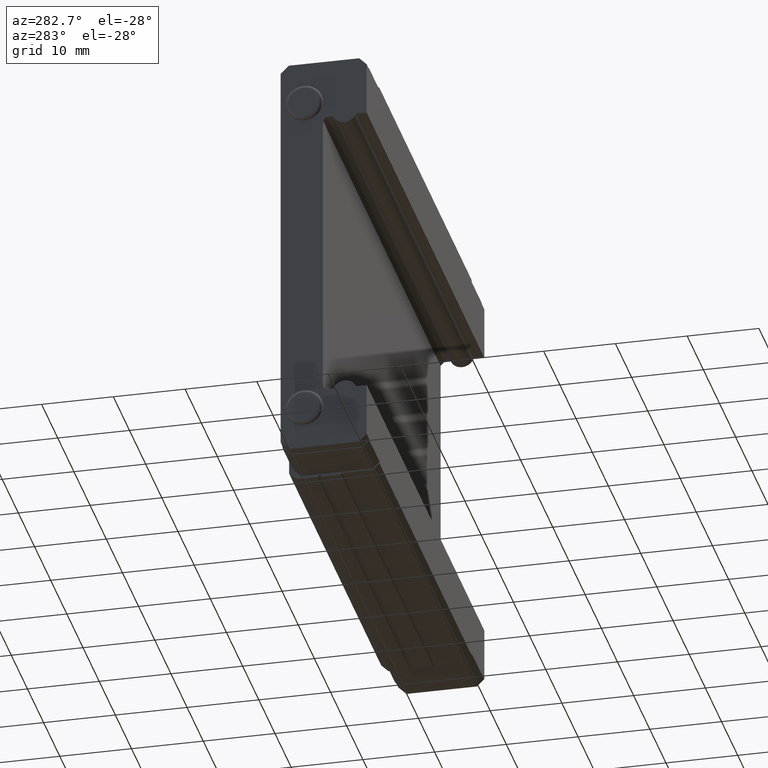
[diagram: clean part render]
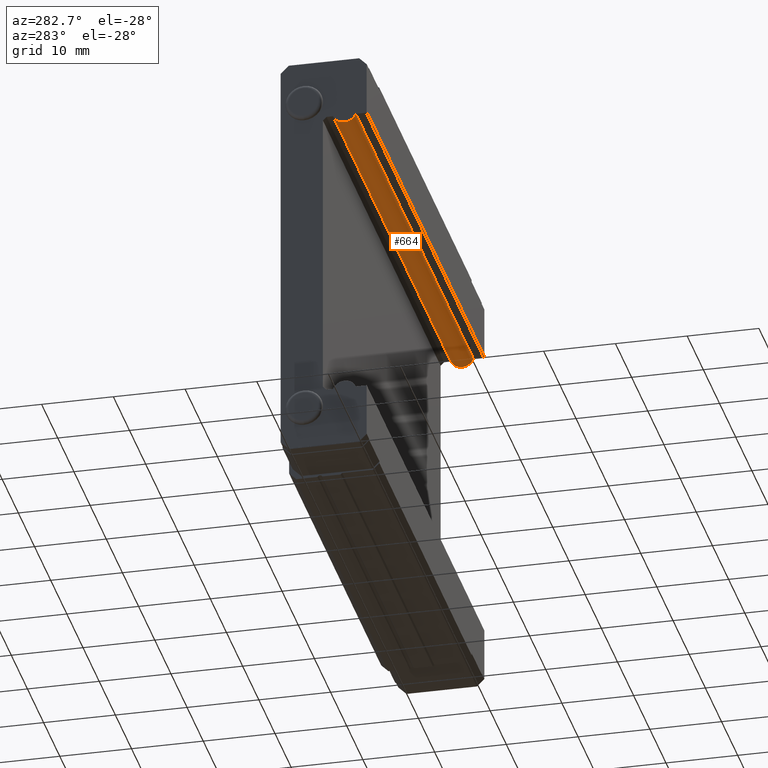
[diagram: same view with one face highlighted and labeled with its STEP entity id]
A machine part, auxiliary view. The second image highlights one B-rep face of the part: STEP entity #664.
In plain terms, the highlighted cylindrical surface (edge-blend (fillet) strip) has radius 1.7 mm, axis along (-1, 0, 0).
Its self-contained STEP definition (entity closure, byte-faithful):
#330 = VERTEX_POINT ( 'NONE', #1381 ) ;
#440 = EDGE_CURVE ( 'NONE', #330, #447, #1548, .T. ) ;
#447 = VERTEX_POINT ( 'NONE', #1531 ) ;
#659 = ORIENTED_EDGE ( 'NONE', *, *, #440, .T. ) ;
#660 = ORIENTED_EDGE ( 'NONE', *, *, #661, .F. ) ;
#661 = EDGE_CURVE ( 'NONE', #892, #447, #1922, .T. ) ;
#662 = ORIENTED_EDGE ( 'NONE', *, *, #882, .F. ) ;
#663 = EDGE_LOOP ( 'NONE', ( #665, #659, #660, #662 ) ) ;
#664 = ADVANCED_FACE ( 'NONE', ( #1918 ), #1917, .T. ) ;
#665 = ORIENTED_EDGE ( 'NONE', *, *, #671, .T. ) ;
#671 = EDGE_CURVE ( 'NONE', #866, #330, #1969, .T. ) ;
#866 = VERTEX_POINT ( 'NONE', #2298 ) ;
#882 = EDGE_CURVE ( 'NONE', #866, #892, #2338, .T. ) ;
#892 = VERTEX_POINT ( 'NONE', #2323 ) ;
#1381 = CARTESIAN_POINT ( 'NONE',  ( -36.39999999999999100, 1.517091285007247500, 21.00000000000000400 ) ) ;
#1531 = CARTESIAN_POINT ( 'NONE',  ( -36.39999999999999100, 4.682908714992752400, 21.00000000000000400 ) ) ;
#1544 = DIRECTION ( 'NONE',  ( 0.0000000000000000000, 0.0000000000000000000, -1.000000000000000000 ) ) ;
#1545 = DIRECTION ( 'NONE',  ( 1.000000000000000000, 0.0000000000000000000, 0.0000000000000000000 ) ) ;
#1546 = CARTESIAN_POINT ( 'NONE',  ( -36.39999999999999100, 3.100000000000000100, 21.62000000000000100 ) ) ;
#1547 = AXIS2_PLACEMENT_3D ( 'NONE', #1546, #1545, #1544 ) ;
#1548 = CIRCLE ( 'NONE', #1547, 1.700000000000000200 ) ;
#1911 = DIRECTION ( 'NONE',  ( 0.0000000000000000000, 0.0000000000000000000, 1.000000000000000000 ) ) ;
#1912 = DIRECTION ( 'NONE',  ( -1.000000000000000000, 0.0000000000000000000, 0.0000000000000000000 ) ) ;
#1913 = CARTESIAN_POINT ( 'NONE',  ( 28.50000000000000000, 3.100000000000000100, 21.62000000000000100 ) ) ;
#1914 = AXIS2_PLACEMENT_3D ( 'NONE', #1913, #1912, #1911 ) ;
#1917 = CYLINDRICAL_SURFACE ( 'NONE', #1914, 1.700000000000000200 ) ;
#1918 = FACE_OUTER_BOUND ( 'NONE', #663, .T. ) ;
#1919 = DIRECTION ( 'NONE',  ( -1.000000000000000000, 0.0000000000000000000, 0.0000000000000000000 ) ) ;
#1920 = VECTOR ( 'NONE', #1919, 1000.000000000000000 ) ;
#1921 = CARTESIAN_POINT ( 'NONE',  ( 28.50000000000000000, 4.682908714992752400, 21.00000000000000400 ) ) ;
#1922 = LINE ( 'NONE', #1921, #1920 ) ;
#1966 = DIRECTION ( 'NONE',  ( -1.000000000000000000, 0.0000000000000000000, 0.0000000000000000000 ) ) ;
#1967 = VECTOR ( 'NONE', #1966, 1000.000000000000000 ) ;
#1968 = CARTESIAN_POINT ( 'NONE',  ( 28.50000000000000000, 1.517091285007247500, 21.00000000000000400 ) ) ;
#1969 = LINE ( 'NONE', #1968, #1967 ) ;
#2298 = CARTESIAN_POINT ( 'NONE',  ( 36.39999999999999100, 1.517091285007247500, 21.00000000000000400 ) ) ;
#2323 = CARTESIAN_POINT ( 'NONE',  ( 36.39999999999999100, 4.682908714992752400, 21.00000000000000400 ) ) ;
#2334 = DIRECTION ( 'NONE',  ( 0.0000000000000000000, 0.0000000000000000000, -1.000000000000000000 ) ) ;
#2335 = DIRECTION ( 'NONE',  ( 1.000000000000000000, 0.0000000000000000000, 0.0000000000000000000 ) ) ;
#2336 = CARTESIAN_POINT ( 'NONE',  ( 36.39999999999999100, 3.100000000000000100, 21.62000000000000100 ) ) ;
#2337 = AXIS2_PLACEMENT_3D ( 'NONE', #2336, #2335, #2334 ) ;
#2338 = CIRCLE ( 'NONE', #2337, 1.700000000000000200 ) ;